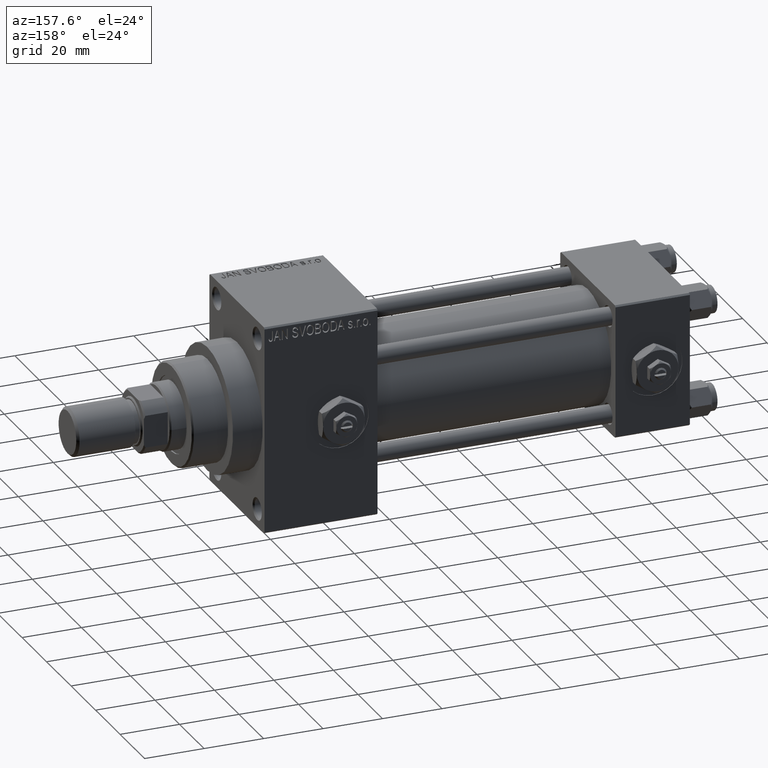
[diagram: clean part render]
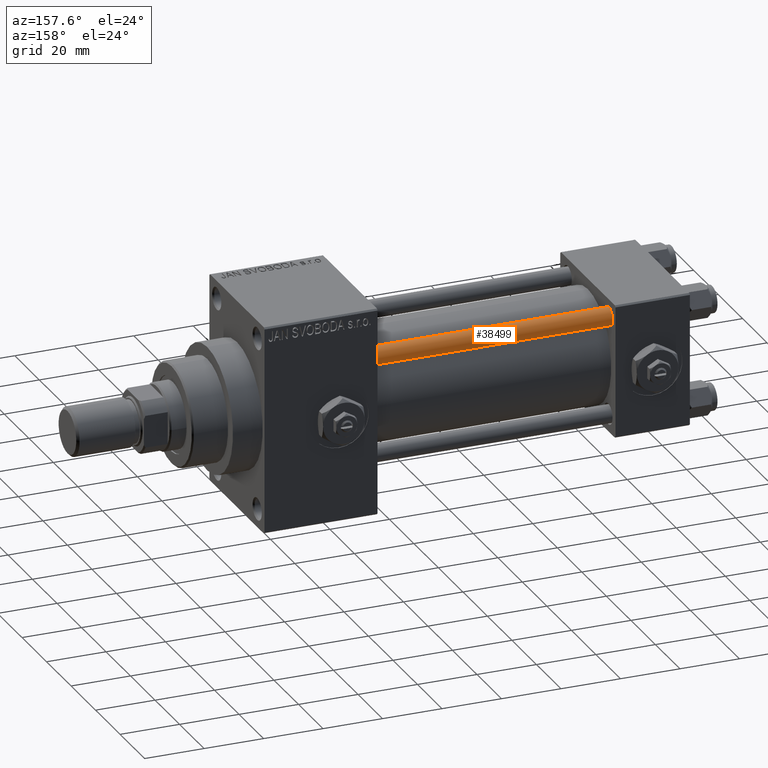
[diagram: same view with one face highlighted and labeled with its STEP entity id]
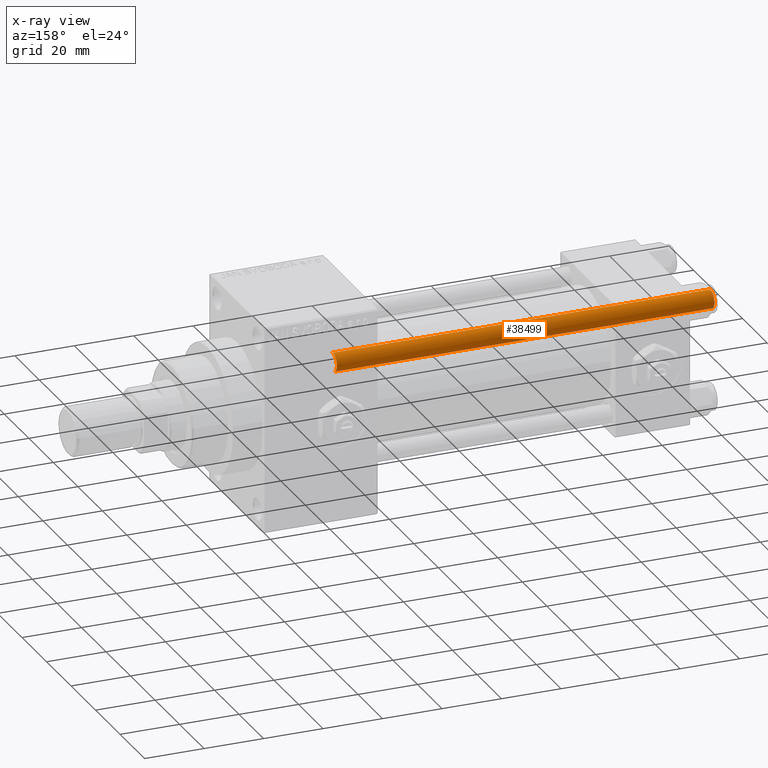
[diagram: x-ray of the same camera — body ghosted, the highlighted face saturated]
A machine part, auxiliary view. The second image highlights one B-rep face of the part: STEP entity #38499.
The next image is the same camera in x-ray: the body ghosted, the highlighted face saturated — about 0% of this face is hidden behind the body in this view.
In plain terms, the highlighted cylindrical surface (edge-blend (fillet) strip) has radius 3 mm, axis along (-1, -0, 0).
Its self-contained STEP definition (entity closure, byte-faithful):
#197 = CARTESIAN_POINT ( 'NONE',  ( -3.000000000000000444, 0.000000000000000000, 128.0000000000000000 ) ) ;
#1827 = DIRECTION ( 'NONE',  ( -0.000000000000000000, -0.000000000000000000, -1.000000000000000000 ) ) ;
#3079 = FACE_OUTER_BOUND ( 'NONE', #8378, .T. ) ;
#3291 = AXIS2_PLACEMENT_3D ( 'NONE', #41921, #18129, #45676 ) ;
#3993 = DIRECTION ( 'NONE',  ( -0.000000000000000000, -0.000000000000000000, 1.000000000000000000 ) ) ;
#5030 = VECTOR ( 'NONE', #1827, 1000.000000000000000 ) ;
#5645 = ORIENTED_EDGE ( 'NONE', *, *, #31256, .T. ) ;
#5998 = AXIS2_PLACEMENT_3D ( 'NONE', #26819, #3993, #39795 ) ;
#7165 = VERTEX_POINT ( 'NONE', #18590 ) ;
#7954 = LINE ( 'NONE', #197, #11394 ) ;
#8193 = ORIENTED_EDGE ( 'NONE', *, *, #40088, .F. ) ;
#8378 = EDGE_LOOP ( 'NONE', ( #5645, #14817, #27978, #8193 ) ) ;
#8629 = VERTEX_POINT ( 'NONE', #29155 ) ;
#11394 = VECTOR ( 'NONE', #34027, 1000.000000000000000 ) ;
#14817 = ORIENTED_EDGE ( 'NONE', *, *, #45521, .T. ) ;
#15631 = CIRCLE ( 'NONE', #5998, 3.000000000000000444 ) ;
#17417 = VERTEX_POINT ( 'NONE', #27670 ) ;
#17614 = LINE ( 'NONE', #28894, #5030 ) ;
#18129 = DIRECTION ( 'NONE',  ( -0.000000000000000000, -0.000000000000000000, -1.000000000000000000 ) ) ;
#18590 = CARTESIAN_POINT ( 'NONE',  ( 3.000000000000000444, 3.673940397442060361E-16, 0.5000000000000281997 ) ) ;
#22363 = EDGE_CURVE ( 'NONE', #7165, #17417, #15631, .T. ) ;
#23389 = VERTEX_POINT ( 'NONE', #45345 ) ;
#26819 = CARTESIAN_POINT ( 'NONE',  ( 0.000000000000000000, 0.000000000000000000, 0.5000000000000281997 ) ) ;
#27670 = CARTESIAN_POINT ( 'NONE',  ( -3.000000000000000444, 0.000000000000000000, 0.5000000000000281997 ) ) ;
#27978 = ORIENTED_EDGE ( 'NONE', *, *, #22363, .T. ) ;
#28589 = DIRECTION ( 'NONE',  ( 0.000000000000000000, 0.000000000000000000, -1.000000000000000000 ) ) ;
#28894 = CARTESIAN_POINT ( 'NONE',  ( 3.000000000000000444, 3.673940397442060361E-16, 128.0000000000000000 ) ) ;
#29155 = CARTESIAN_POINT ( 'NONE',  ( 3.000000000000000444, 3.673940397442060361E-16, 127.4999999999999716 ) ) ;
#31256 = EDGE_CURVE ( 'NONE', #23389, #8629, #33561, .T. ) ;
#32848 = CARTESIAN_POINT ( 'NONE',  ( 0.000000000000000000, 0.000000000000000000, 127.4999999999999716 ) ) ;
#33561 = CIRCLE ( 'NONE', #37565, 3.000000000000000444 ) ;
#34027 = DIRECTION ( 'NONE',  ( -0.000000000000000000, -0.000000000000000000, -1.000000000000000000 ) ) ;
#37565 = AXIS2_PLACEMENT_3D ( 'NONE', #32848, #28589, #43873 ) ;
#38499 = ADVANCED_FACE ( 'NONE', ( #3079 ), #41675, .T. ) ;
#39795 = DIRECTION ( 'NONE',  ( 1.000000000000000000, 0.000000000000000000, 0.000000000000000000 ) ) ;
#40088 = EDGE_CURVE ( 'NONE', #23389, #17417, #7954, .T. ) ;
#41675 = CYLINDRICAL_SURFACE ( 'NONE', #3291, 3.000000000000000444 ) ;
#41921 = CARTESIAN_POINT ( 'NONE',  ( 0.000000000000000000, 0.000000000000000000, 128.0000000000000000 ) ) ;
#43873 = DIRECTION ( 'NONE',  ( 1.000000000000000000, 0.000000000000000000, 0.000000000000000000 ) ) ;
#45345 = CARTESIAN_POINT ( 'NONE',  ( -3.000000000000000444, 0.000000000000000000, 127.4999999999999716 ) ) ;
#45521 = EDGE_CURVE ( 'NONE', #8629, #7165, #17614, .T. ) ;
#45676 = DIRECTION ( 'NONE',  ( -1.000000000000000000, 0.000000000000000000, 0.000000000000000000 ) ) ;